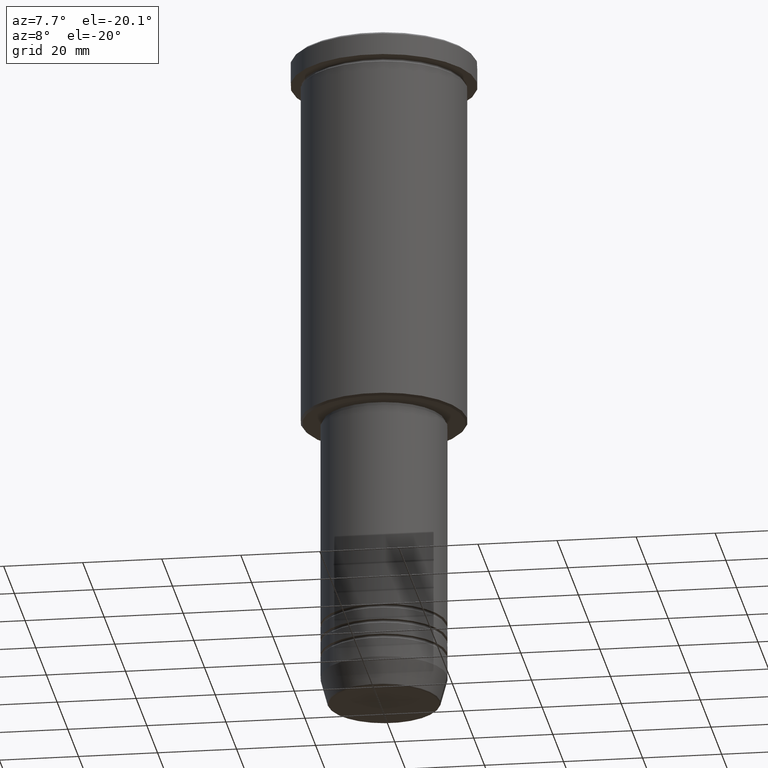
[diagram: clean part render]
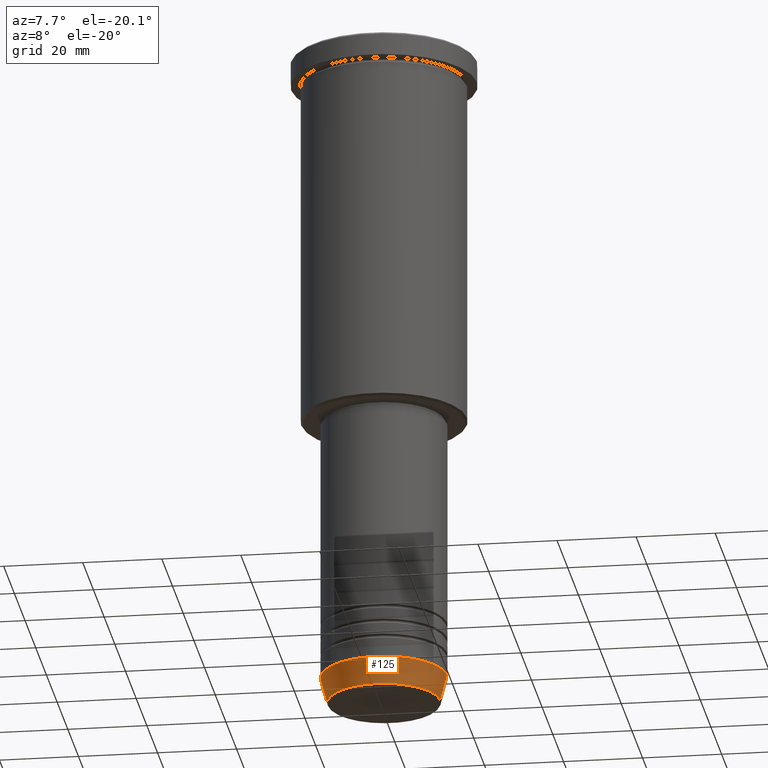
[diagram: same view with one face highlighted and labeled with its STEP entity id]
A machine part, auxiliary view. The second image highlights one B-rep face of the part: STEP entity #125.
In plain terms, the highlighted conical surface has half-angle 15 deg.
Its self-contained STEP definition (entity closure, byte-faithful):
#48 = CARTESIAN_POINT ( 'NONE',  ( 14.22365507213718772, 0.000000000000000000, -170.6294095225512422 ) ) ;
#114 = DIRECTION ( 'NONE',  ( -0.2588190451025213501, 3.169619151431772337E-17, 0.9659258262890680902 ) ) ;
#125 = ADVANCED_FACE ( 'NONE', ( #1120 ), #1025, .T. ) ;
#143 = EDGE_CURVE ( 'NONE', #540, #1070, #1043, .T. ) ;
#146 = DIRECTION ( 'NONE',  ( 0.2588190451025213501, 0.000000000000000000, 0.9659258262890680902 ) ) ;
#234 = CARTESIAN_POINT ( 'NONE',  ( 16.00000000000000000, 0.000000000000000000, -163.9999999999999716 ) ) ;
#245 = EDGE_CURVE ( 'NONE', #1070, #297, #1158, .T. ) ;
#292 = ORIENTED_EDGE ( 'NONE', *, *, #924, .T. ) ;
#297 = VERTEX_POINT ( 'NONE', #300 ) ;
#300 = CARTESIAN_POINT ( 'NONE',  ( 16.00000000000000000, 0.000000000000000000, -163.9999999999999716 ) ) ;
#301 = CIRCLE ( 'NONE', #966, 14.22365507213718772 ) ;
#322 = CARTESIAN_POINT ( 'NONE',  ( -16.00000000000000000, 1.959434878635765131E-15, -163.9999999999999716 ) ) ;
#347 = DIRECTION ( 'NONE',  ( 1.000000000000000000, 0.000000000000000000, 0.000000000000000000 ) ) ;
#395 = DIRECTION ( 'NONE',  ( 1.000000000000000000, 0.000000000000000000, 0.000000000000000000 ) ) ;
#411 = CARTESIAN_POINT ( 'NONE',  ( 0.000000000000000000, 0.000000000000000000, -163.9999999999999716 ) ) ;
#462 = VERTEX_POINT ( 'NONE', #48 ) ;
#488 = CARTESIAN_POINT ( 'NONE',  ( 0.000000000000000000, 0.000000000000000000, -170.6294095225512422 ) ) ;
#496 = DIRECTION ( 'NONE',  ( -0.000000000000000000, -0.000000000000000000, 1.000000000000000000 ) ) ;
#527 = ORIENTED_EDGE ( 'NONE', *, *, #245, .F. ) ;
#530 = AXIS2_PLACEMENT_3D ( 'NONE', #411, #496, #781 ) ;
#532 = ORIENTED_EDGE ( 'NONE', *, *, #143, .F. ) ;
#537 = CARTESIAN_POINT ( 'NONE',  ( -14.22365507213718772, 1.850665122131323337E-15, -170.6294095225512422 ) ) ;
#540 = VERTEX_POINT ( 'NONE', #537 ) ;
#648 = ORIENTED_EDGE ( 'NONE', *, *, #1130, .T. ) ;
#680 = EDGE_LOOP ( 'NONE', ( #532, #292, #648, #527 ) ) ;
#781 = DIRECTION ( 'NONE',  ( 1.000000000000000000, 0.000000000000000000, 0.000000000000000000 ) ) ;
#783 = AXIS2_PLACEMENT_3D ( 'NONE', #1152, #789, #347 ) ;
#789 = DIRECTION ( 'NONE',  ( -0.000000000000000000, -0.000000000000000000, 1.000000000000000000 ) ) ;
#838 = VECTOR ( 'NONE', #114, 1000.000000000000000 ) ;
#854 = DIRECTION ( 'NONE',  ( -0.000000000000000000, -0.000000000000000000, 1.000000000000000000 ) ) ;
#890 = VECTOR ( 'NONE', #146, 1000.000000000000000 ) ;
#924 = EDGE_CURVE ( 'NONE', #540, #462, #301, .T. ) ;
#962 = CARTESIAN_POINT ( 'NONE',  ( -16.00000000000000000, 1.959434878635765131E-15, -163.9999999999999716 ) ) ;
#966 = AXIS2_PLACEMENT_3D ( 'NONE', #488, #854, #395 ) ;
#1025 = CONICAL_SURFACE ( 'NONE', #530, 16.00000000000000000, 0.2617993877991500740 ) ;
#1035 = LINE ( 'NONE', #234, #890 ) ;
#1043 = LINE ( 'NONE', #322, #838 ) ;
#1070 = VERTEX_POINT ( 'NONE', #962 ) ;
#1120 = FACE_OUTER_BOUND ( 'NONE', #680, .T. ) ;
#1130 = EDGE_CURVE ( 'NONE', #462, #297, #1035, .T. ) ;
#1152 = CARTESIAN_POINT ( 'NONE',  ( 0.000000000000000000, 0.000000000000000000, -163.9999999999999716 ) ) ;
#1158 = CIRCLE ( 'NONE', #783, 16.00000000000000000 ) ;